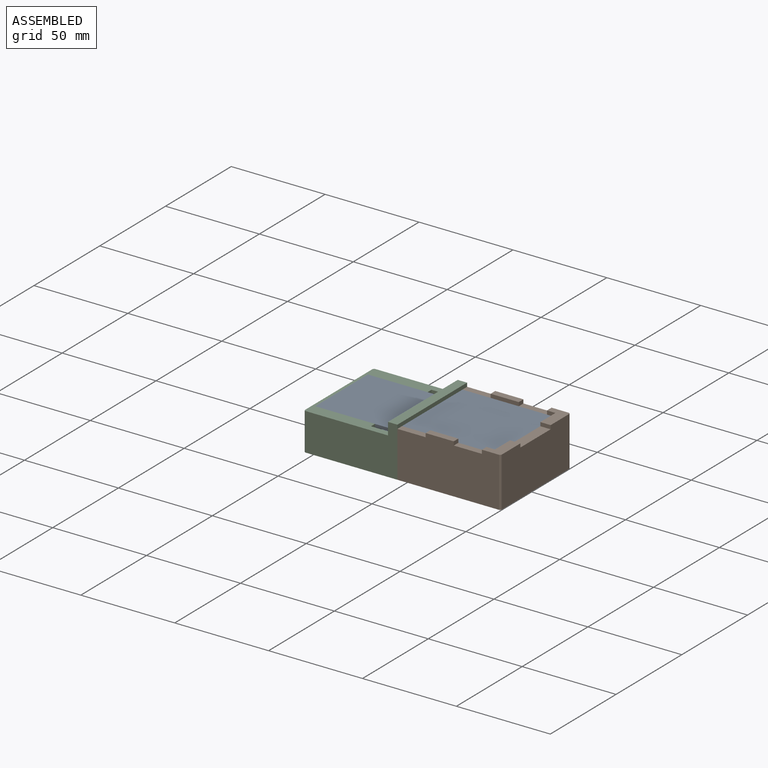
[diagram: assembled view]
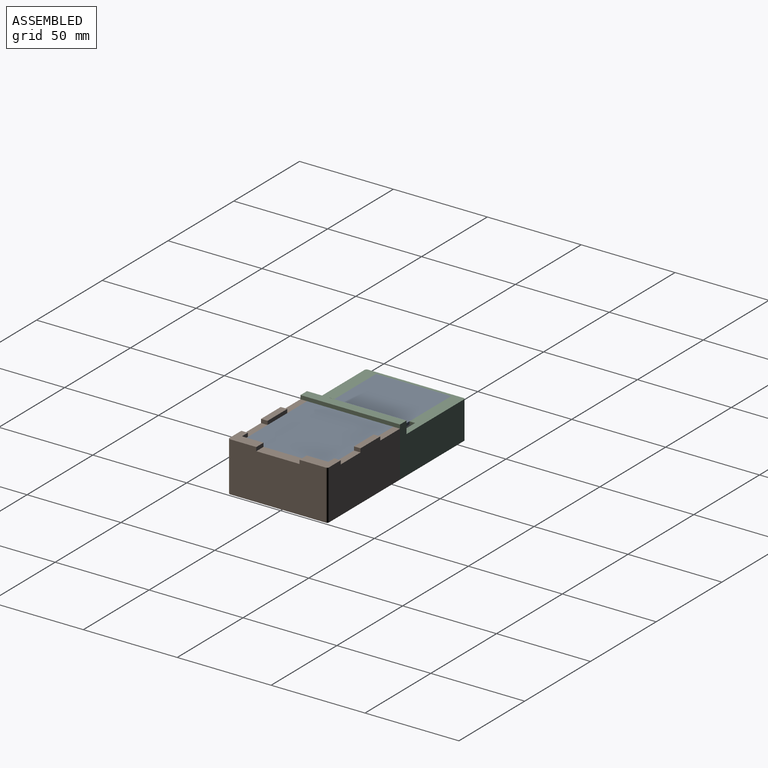
[diagram: assembled view, second angle]
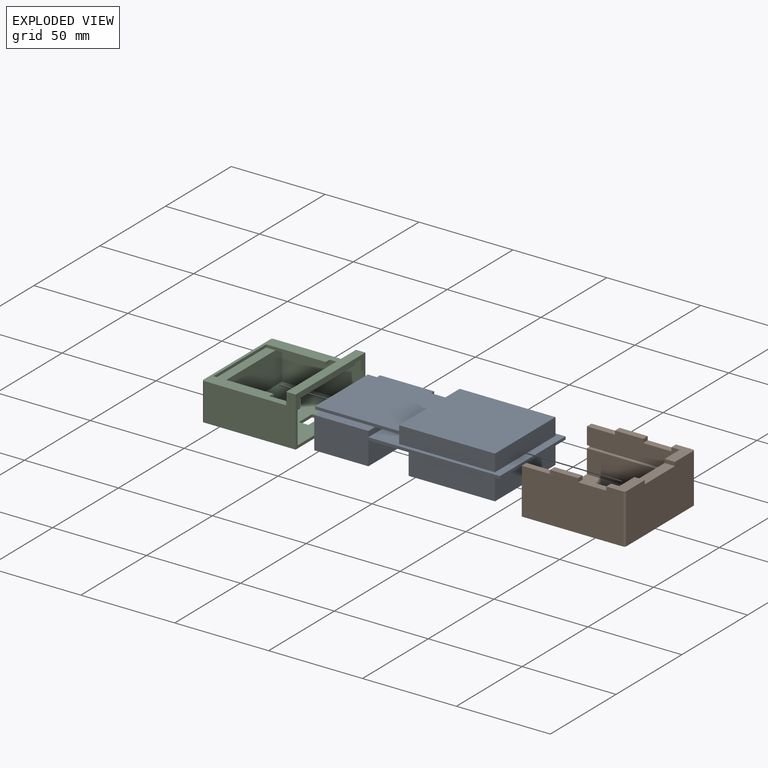
[diagram: exploded view]
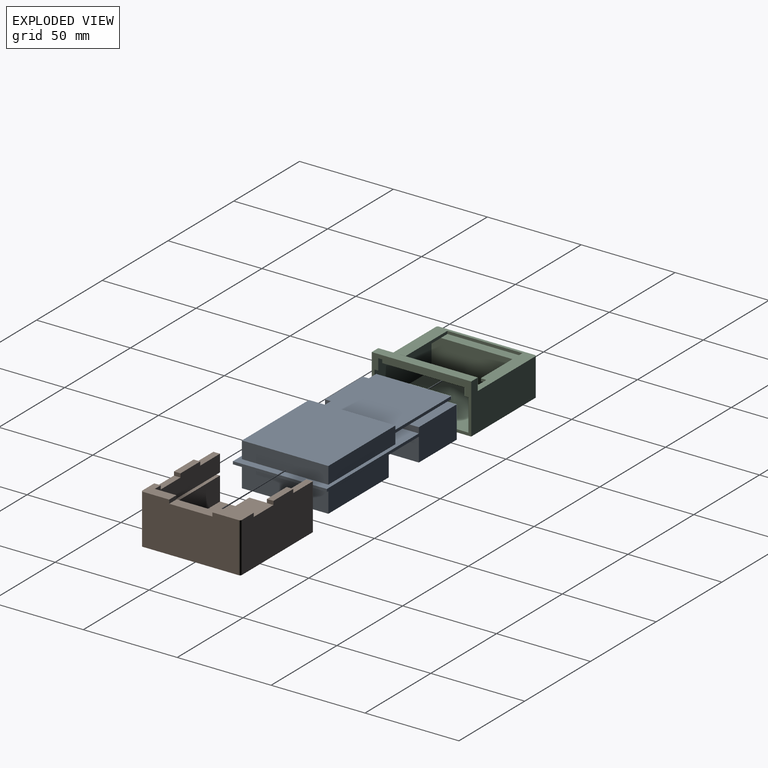
[diagram: exploded view, second angle]
ASSEMBLY  parts=3 mates=2
PART A: 32 faces, bbox 101.8x50x23 mm
  f0: plane 50x28.8mm, normal (0,0,-1), area 1440mm2, adj f5,f7,f25,f31
  f1: plane 40x1.5mm, normal (-1,0,0), area 60mm2, adj f27,f28,f29,f30
  f2: plane 28.8x5mm, normal (0,0,1), area 144mm2, adj f5,f23,f27,f31
  f3: plane 70x50mm, normal (0,0,1), area 1154mm2, adj f5,f6,f7,f18,f19,f20,f21,f23
  f4: plane 70x50mm, normal (0,0,-1), area 1334mm2, adj f5,f6,f7,f8,f9,f10,f11,f13
  f5: plane 98.8x17mm, normal (0,-1,0), area 594.6mm2, adj f0,f2,f3,f4,f6,f23,f25,f31
  f6: plane 50x1.5mm, normal (1,0,0), area 75mm2, adj f3,f4,f5,f7
  f7: plane 98.8x17mm, normal (0,1,0), area 594.6mm2, adj f0,f3,f4,f6,f23,f24,f25,f31
  f8: plane 46x12.5mm, normal (0,1,0), area 575mm2, adj f4,f9,f11,f12
  f9: plane 46x12.5mm, normal (1,0,0), area 575mm2, adj f4,f8,f10,f12
  f10: plane 46x12.5mm, normal (0,-1,0), area 575mm2, adj f4,f9,f11,f12
  f11: plane 46x12.5mm, normal (-1,0,0), area 575mm2, adj f4,f8,f10,f12
  f12: plane 46x46mm, normal (0,0,-1), area 2116mm2, adj f8,f9,f10,f11
  f13: plane 10x10mm, normal (-1,0,0), area 100mm2, adj f4,f14,f16,f17
  f14: plane 10x5mm, normal (0,1,0), area 50mm2, adj f4,f13,f15,f17
  f15: plane 10x10mm, normal (1,0,0), area 100mm2, adj f4,f14,f16,f17
  f16: plane 10x5mm, normal (0,-1,0), area 50mm2, adj f4,f13,f15,f17
  f17: plane 10x5mm, normal (0,0,-1), area 50mm2, adj f13,f14,f15,f16
  f18: plane 51x9mm, normal (0,-1,0), area 459mm2, adj f3,f19,f21,f22
  f19: plane 46x9mm, normal (1,0,0), area 414mm2, adj f3,f18,f20,f22
  f20: plane 51x9mm, normal (0,1,0), area 459mm2, adj f3,f19,f21,f22
  f21: plane 46x9mm, normal (-1,0,0), area 354mm2, adj f3,f18,f20,f22,f26,f27,f28,f29
  f22: plane 51x46mm, normal (0,0,1), area 2346mm2, adj f18,f19,f20,f21
  f23: plane 50x3mm, normal (1,0,0), area 150mm2, adj f2,f3,f5,f7,f24,f26
  f24: plane 28.8x5mm, normal (0,0,1), area 144mm2, adj f7,f23,f28,f31
  f25: plane 50x12.5mm, normal (1,0,0), area 625mm2, adj f0,f4,f5,f7
  f26: plane 40x15mm, normal (0,0,-1), area 600mm2, adj f21,f23,f27,f28
  f27: plane 46.8x1.5mm, normal (0,-1,0), area 70.2mm2, adj f1,f2,f21,f26,f29,f30
  f28: plane 46.8x1.5mm, normal (0,1,0), area 70.2mm2, adj f1,f21,f24,f26,f29,f30
  f29: plane 46.8x40mm, normal (0,0,1), area 1872mm2, adj f1,f21,f27,f28
  f30: plane 40x3mm, normal (0,0,-1), area 120mm2, adj f1,f27,f28,f31
  f31: plane 50x17mm, normal (-1,0,0), area 850mm2, adj f0,f2,f5,f7,f24,f30
PART B: 42 faces, bbox 63x53x26.5 mm
  f0: plane 49.5x46mm, normal (0,0,1), area 2017mm2, adj f16,f27,f28,f35,f36,f38,f39
  f1: plane 5.5x2mm, normal (0,-1,0), area 11mm2, adj f3,f4,f9,f18
  f2: plane 5.5x2mm, normal (0,1,0), area 11mm2, adj f3,f9,f14,f18
  f3: plane 23x5.5mm, normal (0,0,1), area 126.5mm2, adj f1,f2,f9,f18
  f4: plane 15x10mm, normal (0,0,1), area 98mm2, adj f1,f5,f9,f18,f19,f26,f33
  f5: plane 3.5x2mm, normal (-1,0,0), area 7mm2, adj f4,f6,f26,f33
  f6: plane 15x3.5mm, normal (0,0,1), area 52.5mm2, adj f5,f7,f26,f33
  f7: plane 3.5x2mm, normal (1,0,0), area 7mm2, adj f6,f8,f26,f33
  f8: plane 15x3.5mm, normal (0,0,1), area 52.5mm2, adj f7,f21,f26,f33
  f9: plane 46x11mm, normal (-1,0,0), area 460mm2, adj f1,f2,f3,f4,f14,f32,f33,f34
  f10: plane 15x3.5mm, normal (0,0,1), area 52.5mm2, adj f11,f20,f24,f34
  f11: plane 3.5x2mm, normal (1,0,0), area 7mm2, adj f10,f12,f24,f34
  f12: plane 15x3.5mm, normal (0,0,1), area 52.5mm2, adj f11,f13,f24,f34
  f13: plane 3.5x2mm, normal (-1,0,0), area 7mm2, adj f12,f14,f24,f34
  f14: plane 15x10mm, normal (0,0,1), area 98mm2, adj f2,f9,f13,f17,f18,f24,f34
  f15: plane 50x1.5mm, normal (-1,0,0), area 75mm2, adj f29,f30,f31,f32
  f16: plane 46x12.5mm, normal (-1,0,0), area 575mm2, adj f0,f27,f28,f29
  f17: cylinder r=1mm len=26.5mm, axis (0,0,-1), area 41.6mm2, adj f14,f18,f22,f24
  f18: plane 51x26.5mm, normal (1,0,0), area 1305.5mm2, adj f1,f2,f3,f4,f14,f17,f19,f22
  f19: cylinder r=1mm len=26.5mm, axis (0,0,-1), area 41.6mm2, adj f4,f18,f22,f26
  f20: plane 3.5x2mm, normal (-1,0,0), area 7mm2, adj f10,f23,f24,f34
  f21: plane 3.5x2mm, normal (-1,0,0), area 7mm2, adj f8,f25,f26,f33
  f22: plane 55x53mm, normal (0,0,-1), area 2914.6mm2, adj f17,f18,f19,f24,f26,f35
  f23: plane 15x3.5mm, normal (0,0,1), area 52.5mm2, adj f20,f24,f34,f35
  f24: plane 54x26.5mm, normal (0,-1,0), area 1371mm2, adj f10,f11,f12,f13,f14,f17,f20,f22
  f25: plane 15x3.5mm, normal (0,0,1), area 52.5mm2, adj f21,f26,f33,f35
  f26: plane 54x26.5mm, normal (0,1,0), area 1371mm2, adj f4,f5,f6,f7,f8,f19,f21,f22
  f27: plane 49.5x12.5mm, normal (0,1,0), area 618.8mm2, adj f0,f16,f29,f35
  f28: plane 49.5x12.5mm, normal (0,-1,0), area 618.8mm2, adj f0,f16,f29,f35
  f29: plane 53.5x50mm, normal (0,0,1), area 398mm2, adj f15,f16,f27,f28,f30,f31,f35
  f30: plane 53.5x1.5mm, normal (0,-1,0), area 80.2mm2, adj f15,f29,f32,f35
  f31: plane 53.5x1.5mm, normal (0,1,0), area 80.2mm2, adj f15,f29,f32,f35
  f32: plane 53.5x50mm, normal (0,0,-1), area 398mm2, adj f9,f15,f30,f31,f33,f34,f35
  f33: plane 49.5x11mm, normal (0,-1,0), area 484.5mm2, adj f4,f5,f6,f7,f8,f9,f21,f25
  f34: plane 49.5x11mm, normal (0,1,0), area 484.5mm2, adj f9,f10,f11,f12,f13,f14,f20,f23
  f35: plane 53x24.5mm, normal (-1,0,0), area 234.5mm2, adj f0,f22,f23,f24,f25,f26,f27,f28
  f36: plane 18x1.5mm, normal (0,1,0), area 27mm2, adj f0,f37,f39,f40,f41
  f37: plane 26x1.5mm, normal (-1,0,0), area 39mm2, adj f36,f38,f40,f41
  f38: plane 18x1.5mm, normal (0,-1,0), area 27mm2, adj f0,f37,f39,f40,f41
  f39: plane 26x1.5mm, normal (1,0,0), area 39mm2, adj f0,f36,f38,f40
  f40: plane 26x18mm, normal (0,0,1), area 468mm2, adj f36,f37,f38,f39
  f41: plane 26x8mm, normal (0,0,-1), area 208mm2, adj f35,f36,f37,f38
PART C: 34 faces, bbox 49.8x53x26.5 mm
  f0: plane 53x2mm, normal (1,0,0), area 106mm2, adj f1,f4,f6,f9,f10
  f1: plane 46x3mm, normal (0,0,-1), area 138mm2, adj f0,f2,f5,f8
  f2: plane 46x3.5mm, normal (1,0,0), area 161mm2, adj f1,f3,f5,f8
  f3: plane 46x2mm, normal (0,0,-1), area 92mm2, adj f2,f5,f7,f8
  f4: plane 53x24.5mm, normal (1,0,0), area 172.5mm2, adj f0,f5,f6,f8,f9,f14,f15,f16
  f5: plane 16.5x6mm, normal (0,1,0), area 40.2mm2, adj f1,f2,f3,f4,f12,f13,f25,f33
  f6: plane 48.8x26.5mm, normal (0,-1,0), area 1008.5mm2, adj f0,f4,f10,f12,f13,f17,f24
  f7: plane 46x5.5mm, normal (-1,0,0), area 253mm2, adj f3,f10,f11,f12
  f8: plane 16.5x6mm, normal (0,-1,0), area 40.2mm2, adj f1,f2,f3,f4,f11,f13,f21,f32
  f9: plane 48.8x26.5mm, normal (0,1,0), area 1008.5mm2, adj f0,f4,f10,f11,f13,f17,f22
  f10: plane 53x5mm, normal (0,0,1), area 265mm2, adj f0,f6,f7,f9,f11,f12
  f11: plane 6.5x3.5mm, normal (-1,0,0), area 22.7mm2, adj f7,f8,f9,f10,f13
  f12: plane 6.5x3.5mm, normal (-1,0,0), area 22.8mm2, adj f5,f6,f7,f10,f13
  f13: plane 53x44.8mm, normal (0,0,1), area 573mm2, adj f5,f6,f8,f9,f11,f12,f18,f19
  f14: plane 43.3x17mm, normal (0,1,0), area 736.1mm2, adj f4,f16,f30,f33
  f15: plane 43.3x17mm, normal (0,-1,0), area 736.1mm2, adj f4,f16,f30,f32
  f16: plane 50x43.3mm, normal (0,0,1), area 2115mm2, adj f4,f14,f15,f26,f27,f28,f29,f30
  f17: plane 53x49.8mm, normal (0,0,-1), area 2589mm2, adj f4,f6,f9,f22,f23,f24,f26,f27
  f18: plane 40x1.5mm, normal (1,0,0), area 60mm2, adj f13,f19,f20,f31
  f19: plane 31.8x1.5mm, normal (0,1,0), area 47.7mm2, adj f13,f18,f25,f31,f33
  f20: plane 31.8x1.5mm, normal (0,-1,0), area 47.7mm2, adj f13,f18,f21,f31,f32
  f21: plane 3x1.5mm, normal (1,0,0), area 4.5mm2, adj f8,f13,f20,f32
  f22: cylinder r=1mm len=20mm, axis (0,0,-1), area 31.4mm2, adj f9,f13,f17,f23
  f23: plane 51x20mm, normal (-1,0,0), area 1020mm2, adj f13,f17,f22,f24
  f24: cylinder r=1mm len=20mm, axis (0,0,-1), area 31.4mm2, adj f6,f13,f17,f23
  f25: plane 3x1.5mm, normal (1,0,0), area 4.5mm2, adj f5,f13,f19,f33
  f26: plane 5x1.5mm, normal (0,1,0), area 7.5mm2, adj f16,f17,f27,f29
  f27: plane 10x1.5mm, normal (1,0,0), area 15mm2, adj f16,f17,f26,f28
  f28: plane 5x1.5mm, normal (0,-1,0), area 7.5mm2, adj f16,f17,f27,f29
  f29: plane 10x1.5mm, normal (-1,0,0), area 15mm2, adj f16,f17,f26,f28
  f30: plane 50x17mm, normal (1,0,0), area 850mm2, adj f14,f15,f16,f31,f32,f33
  f31: plane 40x5mm, normal (0,0,1), area 200mm2, adj f18,f19,f20,f30
  f32: plane 43.3x5mm, normal (0,0,-1), area 167mm2, adj f4,f8,f15,f20,f21,f30
  f33: plane 43.3x5mm, normal (0,0,-1), area 167mm2, adj f4,f5,f14,f19,f25,f30
PLACE A t=(-19.42,-24.96,1.34)mm fixed
PLACE B t=(-19.42,-24.96,-11.16)mm
PLACE C t=(-19.42,-24.96,-11.16)mm
MATE slider A.f6 <-> B.f15  axis (1,0,0) through (50.58,0.04,2.09)mm
MATE slider A.f1 <-> C.f18  axis (-1,0,0) through (-51.22,0.04,6.59)mm
